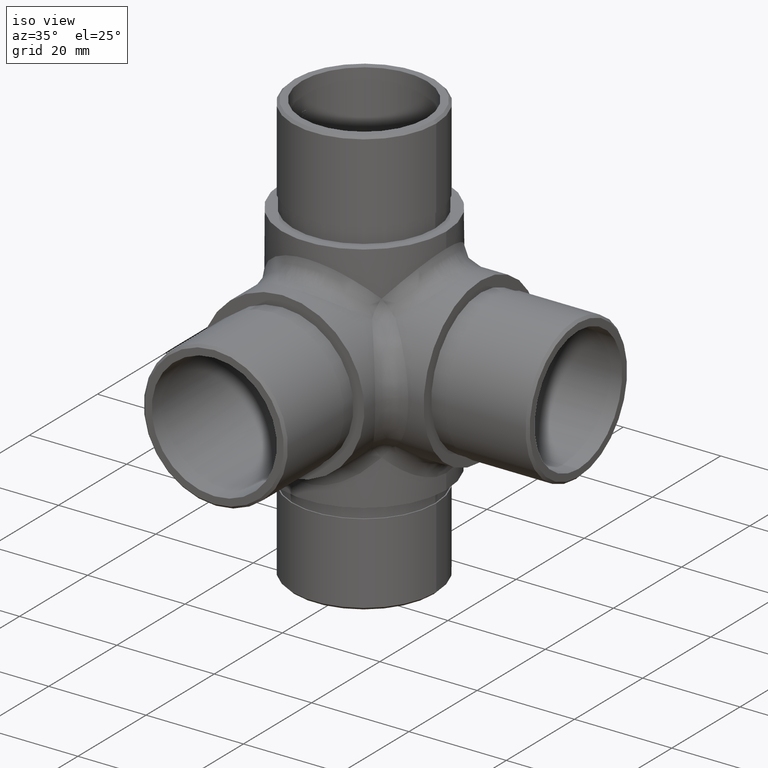
[diagram: clean part render]
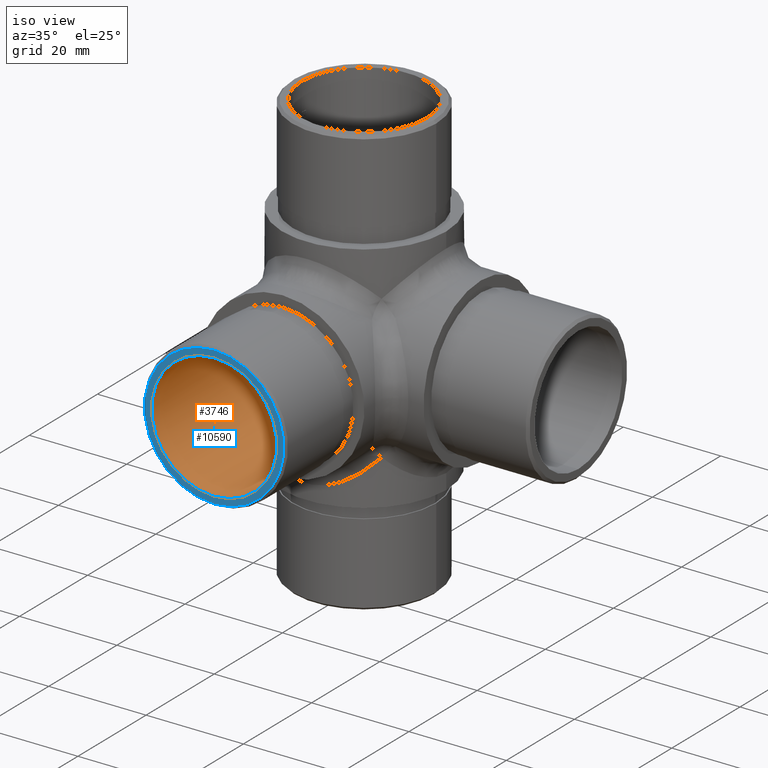
[diagram: same view with the hole feature highlighted: cylindrical wall and planar end face, labeled with their STEP entity ids]
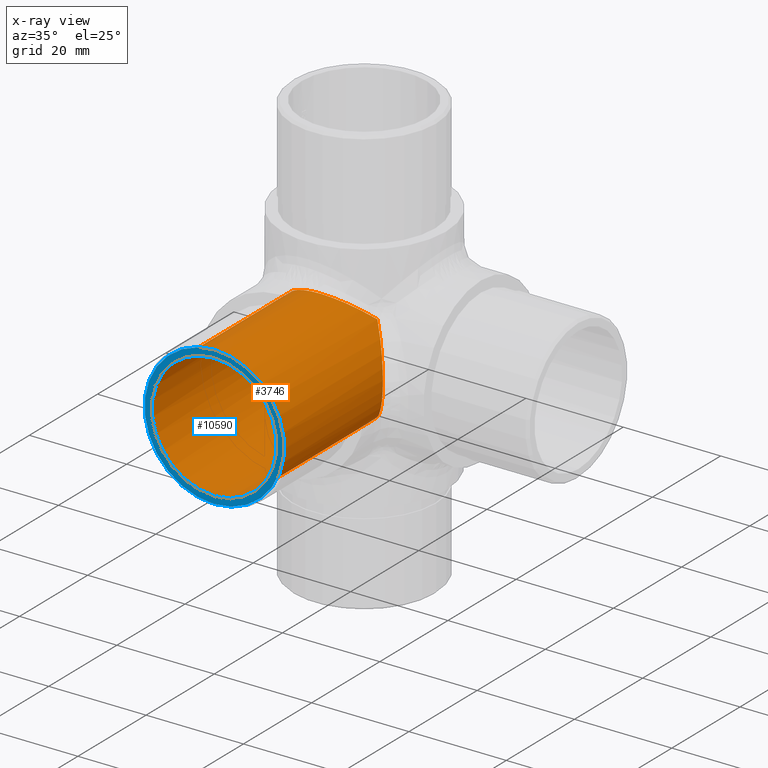
[diagram: x-ray of the same camera — body ghosted, the hole faces saturated]
A machine part, iso view. The highlighted faces form one hole feature of diameter 25.7 mm: the cylindrical wall (entity #3746, orange) and its adjacent planar end face (entity #10590, blue) — they share a circular edge in the B-rep.
The next image is the same camera in x-ray (body ghosted, the hole faces saturated) — the bore reads through the body.
Wall:
#44 = CARTESIAN_POINT ( 'NONE',  ( 9.086322138240655400, 34.91367786174638600, 9.086322138253613900 ) ) ;
#245 = VERTEX_POINT ( 'NONE', #9017 ) ;
#349 = CARTESIAN_POINT ( 'NONE',  ( -12.84999999999999600, 30.55027209363833400, 13.44972790636166600 ) ) ;
#433 = VERTEX_POINT ( 'NONE', #11072 ) ;
#604 = EDGE_LOOP ( 'NONE', ( #1110, #6900, #9112 ) ) ;
#831 = AXIS2_PLACEMENT_3D ( 'NONE', #8094, #8174, #6099 ) ;
#1110 = ORIENTED_EDGE ( 'NONE', *, *, #8146, .T. ) ;
#1112 = CARTESIAN_POINT ( 'NONE',  ( -0.4240716694684041900, 25.40328405405088600, 18.59671594594911100 ) ) ;
#2608 = FACE_OUTER_BOUND ( 'NONE', #3823, .T. ) ;
#2940 = FACE_OUTER_BOUND ( 'NONE', #604, .T. ) ;
#3148 = EDGE_CURVE ( 'NONE', #245, #245, #6454, .T. ) ;
#3242 = CARTESIAN_POINT ( 'NONE',  ( 9.086322138244614900, 34.91367786175034400, -9.086322138249654400 ) ) ;
#3485 = CARTESIAN_POINT ( 'NONE',  ( -12.85000000000000000, 44.00000000000000000, 0.0000000000000000000 ) ) ;
#3514 = CARTESIAN_POINT ( 'NONE',  ( 14.40896641474464000, 29.59103358524240000, -3.763677861754894000 ) ) ;
#3645 = VERTEX_POINT ( 'NONE', #8298 ) ;
#3746 = ADVANCED_FACE ( 'NONE', ( #2940, #2608 ), #5818, .F. ) ;
#3755 = DIRECTION ( 'NONE',  ( 0.0000000000000000000, 0.0000000000000000000, -1.000000000000000000 ) ) ;
#3798 =( BOUNDED_CURVE ( )  B_SPLINE_CURVE ( 3, ( #10531, #4362, #9345, #3242 ),
 .UNSPECIFIED., .F., .F. ) 
 B_SPLINE_CURVE_WITH_KNOTS ( ( 4, 4 ),
 ( 4.712388980384689700, 7.068583470576757400 ),
 .UNSPECIFIED. ) 
 CURVE ( )  GEOMETRIC_REPRESENTATION_ITEM ( )  RATIONAL_B_SPLINE_CURVE ( ( 1.000000000000000000, 0.5884556215768118600, 0.5884556215768118600, 1.000000000000000000 ) ) 
 REPRESENTATION_ITEM ( '' )  );
#3823 = EDGE_LOOP ( 'NONE', ( #6826 ) ) ;
#3916 = EDGE_CURVE ( 'NONE', #3645, #433, #10490, .T. ) ;
#4362 = CARTESIAN_POINT ( 'NONE',  ( -12.84999999999999800, 30.55027209363404600, -13.44972790636594700 ) ) ;
#4552 = CARTESIAN_POINT ( 'NONE',  ( 9.086322138244614900, 34.91367786175034400, -9.086322138249654400 ) ) ;
#5147 = AXIS2_PLACEMENT_3D ( 'NONE', #9888, #9005, #3755 ) ;
#5818 = CYLINDRICAL_SURFACE ( 'NONE', #5147, 12.85000000000000000 ) ;
#6099 = DIRECTION ( 'NONE',  ( 0.0000000000000000000, 0.0000000000000000000, -1.000000000000000000 ) ) ;
#6454 = CIRCLE ( 'NONE', #831, 12.85000000000000000 ) ;
#6817 = EDGE_CURVE ( 'NONE', #433, #7099, #3798, .T. ) ;
#6826 = ORIENTED_EDGE ( 'NONE', *, *, #3148, .T. ) ;
#6900 = ORIENTED_EDGE ( 'NONE', *, *, #6817, .F. ) ;
#7099 = VERTEX_POINT ( 'NONE', #12614 ) ;
#8094 = CARTESIAN_POINT ( 'NONE',  ( 0.0000000000000000000, 0.0000000000000000000, 0.0000000000000000000 ) ) ;
#8146 = EDGE_CURVE ( 'NONE', #3645, #7099, #11164, .T. ) ;
#8174 = DIRECTION ( 'NONE',  ( 0.0000000000000000000, -1.000000000000000000, 0.0000000000000000000 ) ) ;
#8298 = CARTESIAN_POINT ( 'NONE',  ( 9.086322138240655400, 34.91367786174638600, 9.086322138253613900 ) ) ;
#9005 = DIRECTION ( 'NONE',  ( -0.0000000000000000000, -1.000000000000000000, -0.0000000000000000000 ) ) ;
#9017 = CARTESIAN_POINT ( 'NONE',  ( 0.0000000000000000000, 0.0000000000000000000, -12.85000000000000000 ) ) ;
#9112 = ORIENTED_EDGE ( 'NONE', *, *, #3916, .F. ) ;
#9345 = CARTESIAN_POINT ( 'NONE',  ( -0.4240716694633284200, 25.40328405404766700, -18.59671594595232900 ) ) ;
#9745 = CARTESIAN_POINT ( 'NONE',  ( 9.086322138240655400, 34.91367786174638600, 9.086322138253613900 ) ) ;
#9888 = CARTESIAN_POINT ( 'NONE',  ( 0.0000000000000000000, 500000.0000000000600, 0.0000000000000000000 ) ) ;
#10490 =( BOUNDED_CURVE ( )  B_SPLINE_CURVE ( 3, ( #44, #1112, #349, #3485 ),
 .UNSPECIFIED., .F., .F. ) 
 B_SPLINE_CURVE_WITH_KNOTS ( ( 4, 4 ),
 ( 5.497787143782851200, 7.853981633974482800 ),
 .UNSPECIFIED. ) 
 CURVE ( )  GEOMETRIC_REPRESENTATION_ITEM ( )  RATIONAL_B_SPLINE_CURVE ( ( 1.000000000000000000, 0.5884556215769462000, 0.5884556215769462000, 1.000000000000000000 ) ) 
 REPRESENTATION_ITEM ( '' )  );
#10531 = CARTESIAN_POINT ( 'NONE',  ( -12.85000000000000000, 44.00000000000000000, 0.0000000000000000000 ) ) ;
#11072 = CARTESIAN_POINT ( 'NONE',  ( -12.85000000000000000, 44.00000000000000000, 0.0000000000000000000 ) ) ;
#11164 =( BOUNDED_CURVE ( )  B_SPLINE_CURVE ( 3, ( #9745, #11714, #3514, #4552 ),
 .UNSPECIFIED., .F., .F. ) 
 B_SPLINE_CURVE_WITH_KNOTS ( ( 4, 4 ),
 ( 5.497787143781424700, 7.068583470577529200 ),
 .UNSPECIFIED. ) 
 CURVE ( )  GEOMETRIC_REPRESENTATION_ITEM ( )  RATIONAL_B_SPLINE_CURVE ( ( 1.000000000000000000, 0.8047378541240802800, 0.8047378541240802800, 1.000000000000000000 ) ) 
 REPRESENTATION_ITEM ( '' )  );
#11714 = CARTESIAN_POINT ( 'NONE',  ( 14.40896641474381700, 29.59103358524322000, 3.763677861758045800 ) ) ;
#12614 = CARTESIAN_POINT ( 'NONE',  ( 9.086322138244614900, 34.91367786175034400, -9.086322138249654400 ) ) ;
End face:
#245 = VERTEX_POINT ( 'NONE', #9017 ) ;
#287 = DIRECTION ( 'NONE',  ( 0.0000000000000000000, 0.0000000000000000000, -1.000000000000000000 ) ) ;
#584 = CARTESIAN_POINT ( 'NONE',  ( 0.0000000000000000000, 0.0000000000000000000, -14.30000000000000800 ) ) ;
#831 = AXIS2_PLACEMENT_3D ( 'NONE', #8094, #8174, #6099 ) ;
#1914 = ORIENTED_EDGE ( 'NONE', *, *, #2875, .T. ) ;
#2224 = AXIS2_PLACEMENT_3D ( 'NONE', #11563, #5377, #10586 ) ;
#2277 = DIRECTION ( 'NONE',  ( 0.0000000000000000000, -1.000000000000000000, 0.0000000000000000000 ) ) ;
#2875 = EDGE_CURVE ( 'NONE', #6062, #6062, #5836, .T. ) ;
#3148 = EDGE_CURVE ( 'NONE', #245, #245, #6454, .T. ) ;
#4960 = FACE_BOUND ( 'NONE', #7575, .T. ) ;
#5377 = DIRECTION ( 'NONE',  ( 0.0000000000000000000, -1.000000000000000000, 0.0000000000000000000 ) ) ;
#5836 = CIRCLE ( 'NONE', #8848, 14.30000000000000800 ) ;
#6062 = VERTEX_POINT ( 'NONE', #584 ) ;
#6099 = DIRECTION ( 'NONE',  ( 0.0000000000000000000, 0.0000000000000000000, -1.000000000000000000 ) ) ;
#6443 = PLANE ( 'NONE',  #2224 ) ;
#6454 = CIRCLE ( 'NONE', #831, 12.85000000000000000 ) ;
#7575 = EDGE_LOOP ( 'NONE', ( #9664 ) ) ;
#7943 = EDGE_LOOP ( 'NONE', ( #1914 ) ) ;
#8094 = CARTESIAN_POINT ( 'NONE',  ( 0.0000000000000000000, 0.0000000000000000000, 0.0000000000000000000 ) ) ;
#8174 = DIRECTION ( 'NONE',  ( 0.0000000000000000000, -1.000000000000000000, 0.0000000000000000000 ) ) ;
#8335 = FACE_OUTER_BOUND ( 'NONE', #7943, .T. ) ;
#8448 = CARTESIAN_POINT ( 'NONE',  ( 0.0000000000000000000, 0.0000000000000000000, 0.0000000000000000000 ) ) ;
#8848 = AXIS2_PLACEMENT_3D ( 'NONE', #8448, #2277, #287 ) ;
#9017 = CARTESIAN_POINT ( 'NONE',  ( 0.0000000000000000000, 0.0000000000000000000, -12.85000000000000000 ) ) ;
#9664 = ORIENTED_EDGE ( 'NONE', *, *, #3148, .F. ) ;
#10586 = DIRECTION ( 'NONE',  ( 0.0000000000000000000, -0.0000000000000000000, -1.000000000000000000 ) ) ;
#10590 = ADVANCED_FACE ( 'NONE', ( #8335, #4960 ), #6443, .T. ) ;
#11563 = CARTESIAN_POINT ( 'NONE',  ( 0.0000000000000000000, 0.0000000000000000000, 0.0000000000000000000 ) ) ;